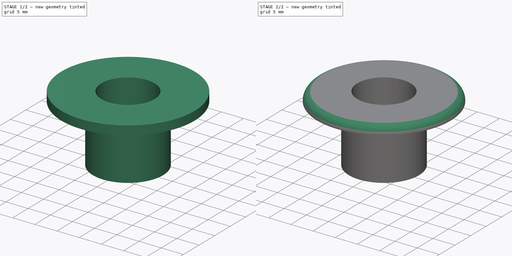
[diagram: build sequence overview — one tinted view per stage of 2, left to right]
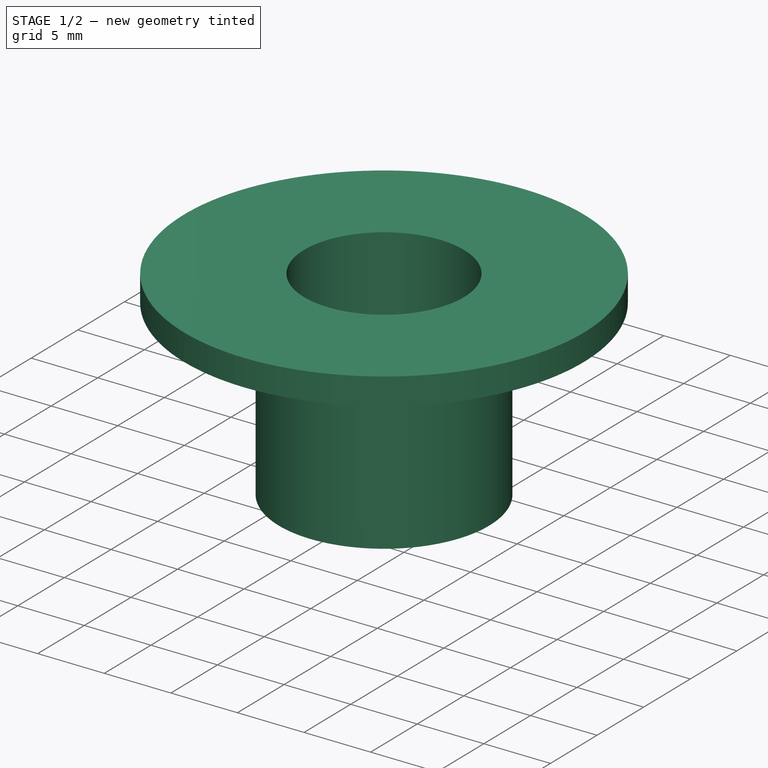
[diagram: stage 1 of 2 — iso view after this stage's code; geometry added in this stage tinted green]
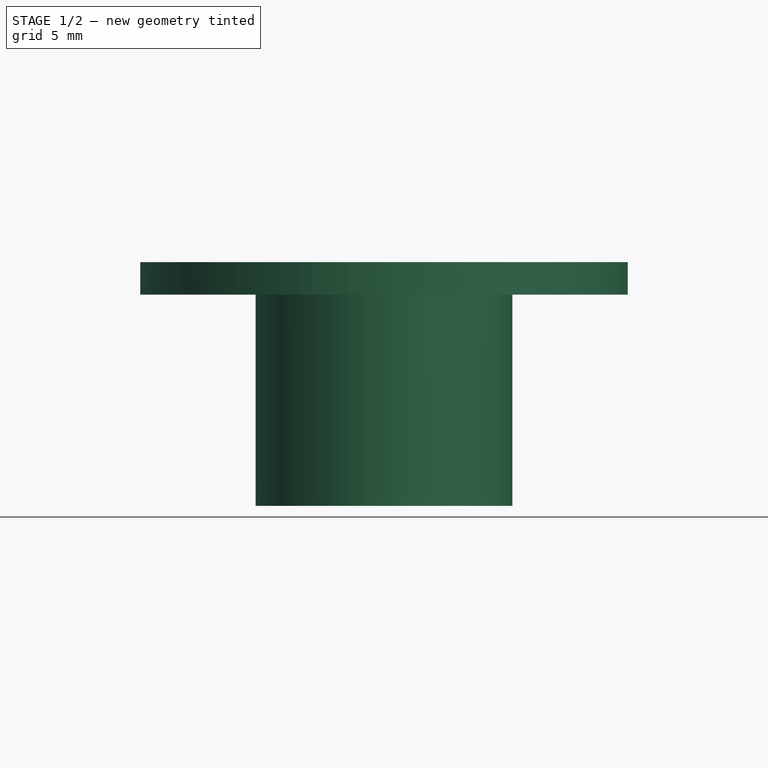
[diagram: stage 1 of 2 — front view after this stage's code; geometry added in this stage tinted green]
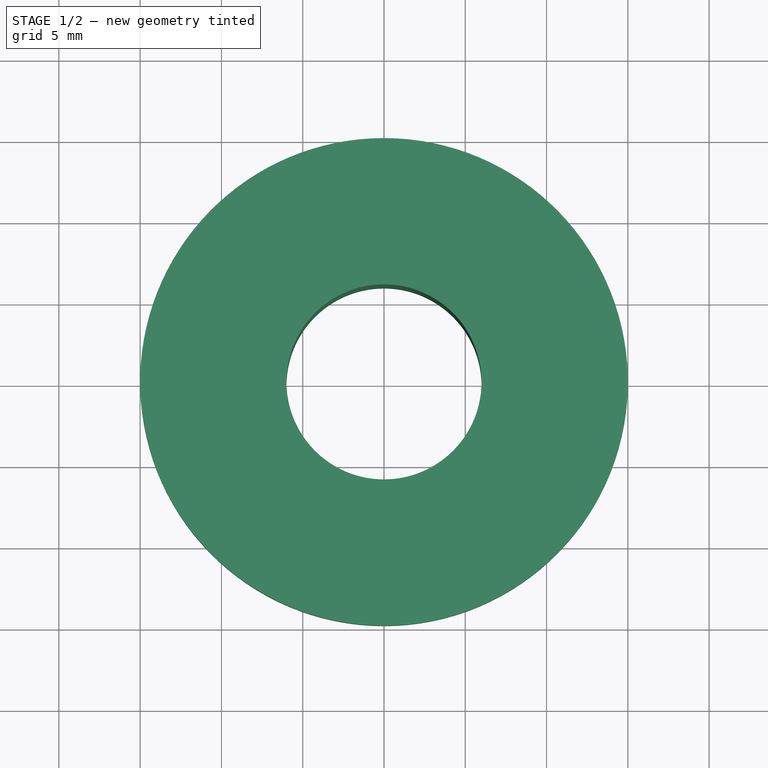
[diagram: stage 1 of 2 — top view after this stage's code; geometry added in this stage tinted green]
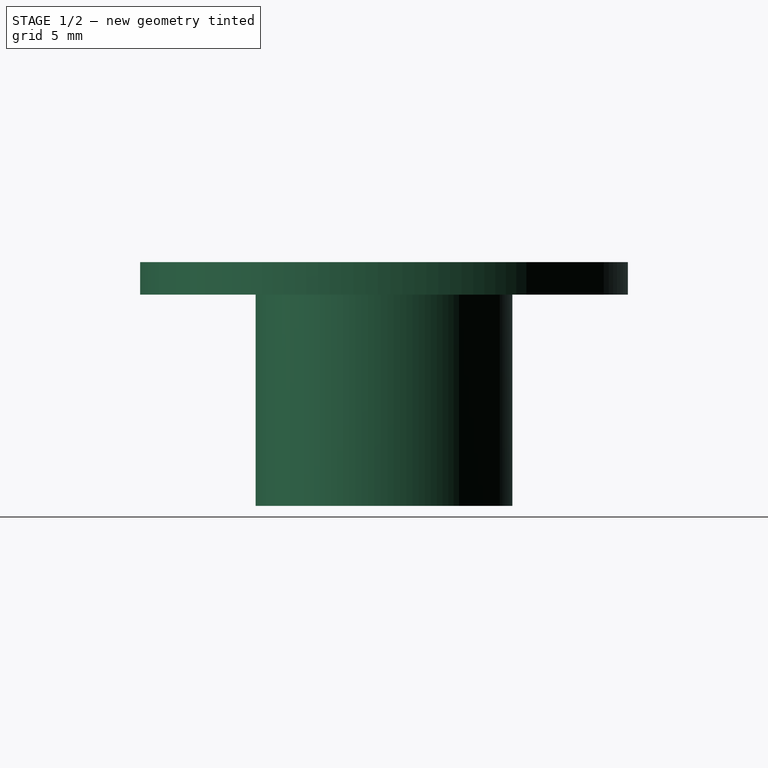
[diagram: stage 1 of 2 — right view after this stage's code; geometry added in this stage tinted green]
FCSTD DOCUMENT  (FreeCAD 0.21R33694 (Git))
Label: 12v_female_plug_insert
License: All rights reserved
LicenseURL: https://en.wikipedia.org/wiki/All_rights_reserved
objects: Sketcher::SketchObject×2, PartDesign::Revolution×1, PartDesign::Pad×1, PartDesign::Fillet×1, PartDesign::Body×1
note: 9 computed .brp shape members not serialized (recipe doc carries the construction recipe); baked Part::Feature solids carry a one-line shape summary decoded from their .brp

FEATURE [Sketcher::SketchObject] Sketch001
  FullyConstrained = true
  MapMode = 5
  Placement = pos=(0,0,0) rot=(0.57735,0.57735,0.57735;2.0944rad)
  Support = -> [YZ_Plane]
  sketch-geometry (6):
    g0: LineSegment StartX=0 StartY=0 StartZ=0 EndX=6 EndY=0 EndZ=0
    g1: LineSegment StartX=0 StartY=15 StartZ=0 EndX=6 EndY=15 EndZ=0
    g2: LineSegment StartX=6 StartY=15 StartZ=0 EndX=7.9 EndY=15 EndZ=0
    g3: LineSegment StartX=7.9 StartY=15 StartZ=0 EndX=7.9 EndY=0 EndZ=0
    g4: LineSegment StartX=7.9 StartY=0 StartZ=0 EndX=6 EndY=0 EndZ=0
    g5: LineSegment StartX=6 StartY=0 StartZ=0 EndX=6 EndY=15 EndZ=0
  constraints (18):
    c: Coincident(g0,g-1)
    c: PointOnObject(g0,g-1)
    c: PointOnObject(g1,g-2)
    c: Horizontal(g1)
    c: DistanceY(g0,g1) = 15
    c: DistanceX(g1,g0) = 0
    c: DistanceX(g1,g1) = 6
    c: Coincident(g2,g3)
    c: Coincident(g3,g4)
    c: Coincident(g4,g5)
    c: Coincident(g5,g2)
    c: Horizontal(g2)
    c: Horizontal(g4)
    c: Vertical(g3)
    c: Vertical(g5)
    c: Coincident(g2,g1)
    c: PointOnObject(g3,g-1)
    c: DistanceX(g0,g3) = 7.9
FEATURE [PartDesign::Revolution] Revolution
  Angle = 360
  Axis = (-2e-16,3e-16,1)
  Base = (0,0,0)
  Midplane = true
  Placement = pos=(0,0,0) rot=(1,1,1;2.0944rad)
  Profile = -> Sketch001
  ReferenceAxis = -> Sketch001 [V_Axis]
FEATURE [Sketcher::SketchObject] Sketch002
  ExternalGeometry = -> [Revolution]
  FullyConstrained = true
  MapMode = 5
  Placement = pos=(-8.3e-15,5.8e-15,15) rot=(0,0,-1;1.5708rad)
  Support = -> [Revolution]
  sketch-geometry (2):
    g0: Circle CenterX=0 CenterY=0 CenterZ=0 NormalX=0 NormalY=0 NormalZ=1 AngleXU=0 Radius=15
    g1: Circle CenterX=0 CenterY=0 CenterZ=0 NormalX=0 NormalY=0 NormalZ=1 AngleXU=0 Radius=6
  constraints (4):
    c: Coincident(g0,g-1)
    c: Coincident(g1,g0)
    c: Equal(g-3,g1)
    c: Diameter(g0) = 30
FEATURE [PartDesign::Pad] Pad
  BaseFeature = -> Revolution
  Direction = (-6e-16,4e-16,1)
  Length = 2
  Length2 = 10
  Placement = pos=(0,0,0) rot=(1,1,1;2.0944rad)
  Profile = -> Sketch002
  ReferenceAxis = -> Sketch002 [N_Axis]
  Reversed = true
  Type = 0
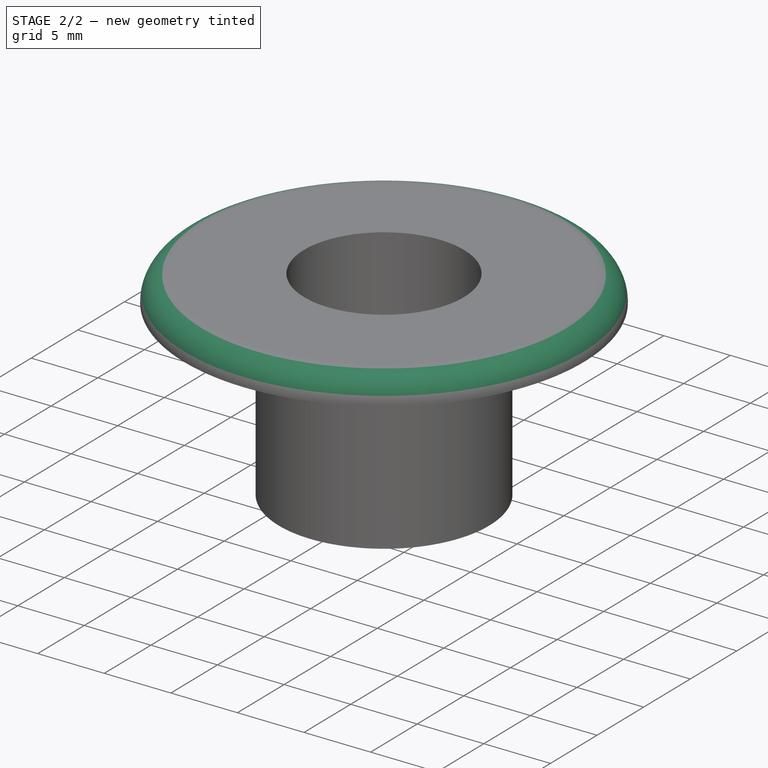
[diagram: stage 2 of 2 — iso view after this stage's code; geometry added in this stage tinted green]
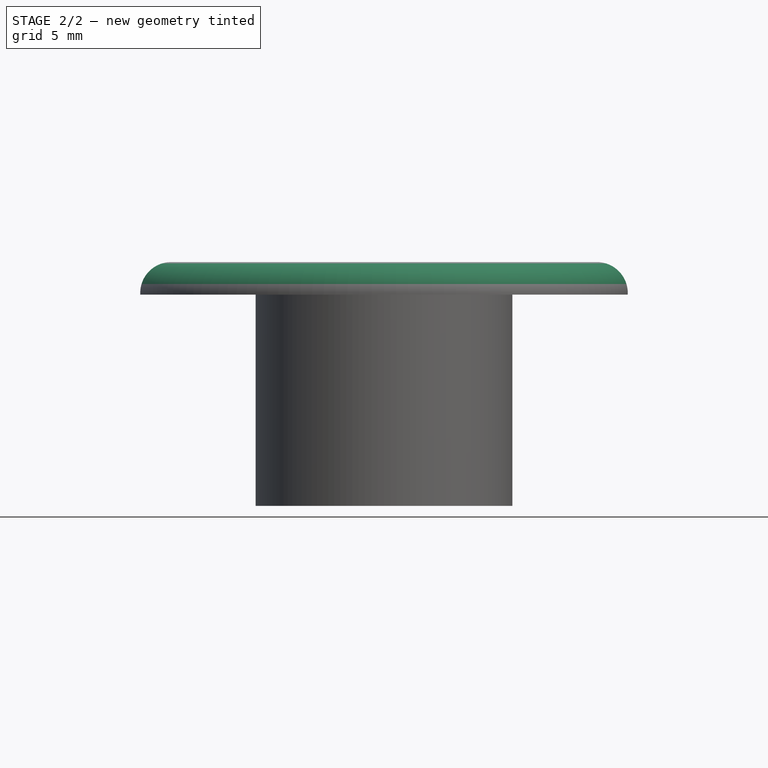
[diagram: stage 2 of 2 — front view after this stage's code; geometry added in this stage tinted green]
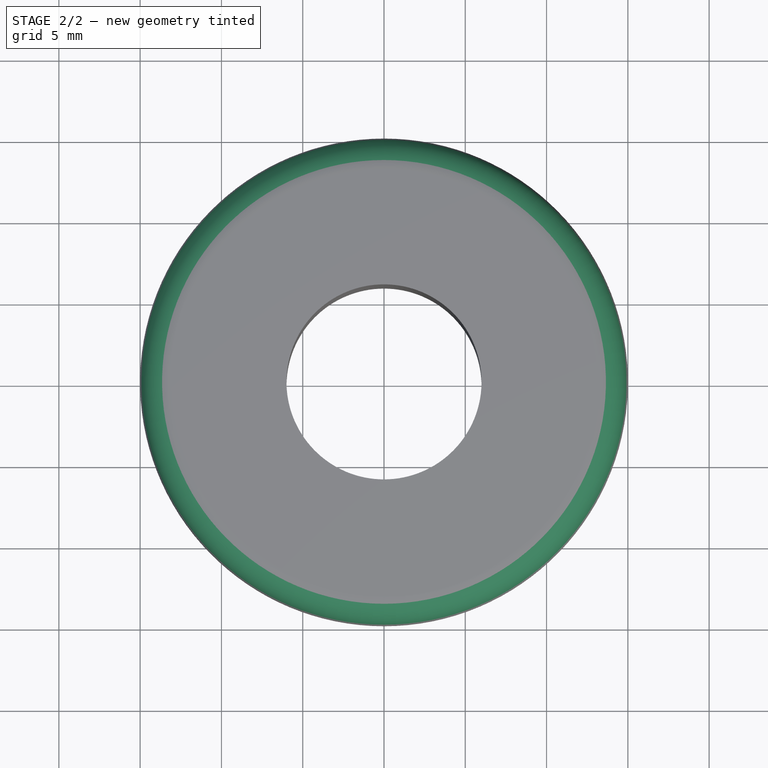
[diagram: stage 2 of 2 — top view after this stage's code; geometry added in this stage tinted green]
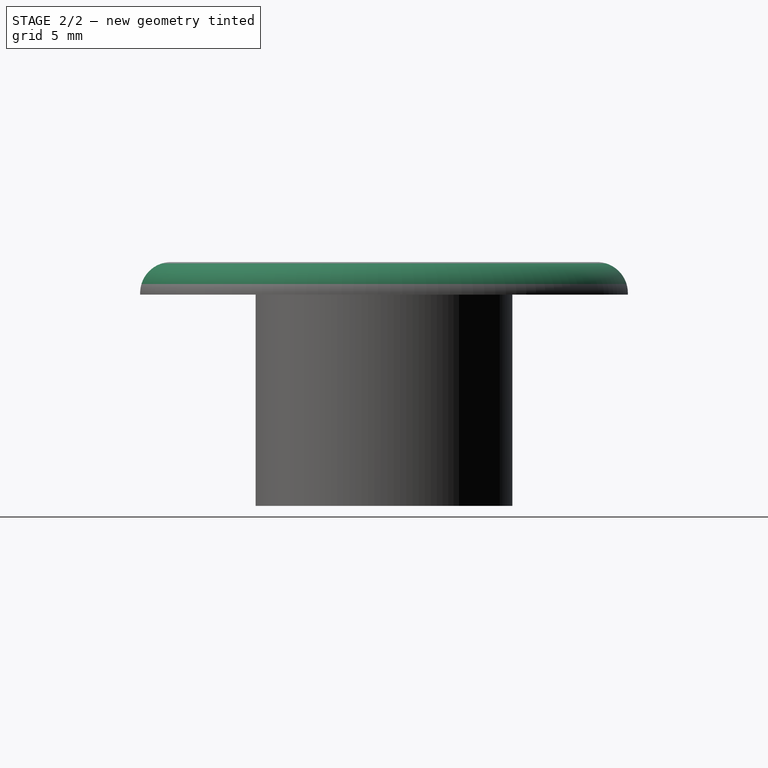
[diagram: stage 2 of 2 — right view after this stage's code; geometry added in this stage tinted green]
FEATURE [PartDesign::Fillet] Fillet
  Base = -> Pad [Edge5]
  BaseFeature = -> Pad
  Placement = pos=(0,0,0) rot=(1,1,1;2.0944rad)
  Radius = 1.9
  SupportTransform = false
  UseAllEdges = false
FEATURE [PartDesign::Body] Body
  Group = -> [Sketch001,Revolution,Sketch002,Pad,Fillet]
  Origin = -> Origin
  Tip = -> Fillet
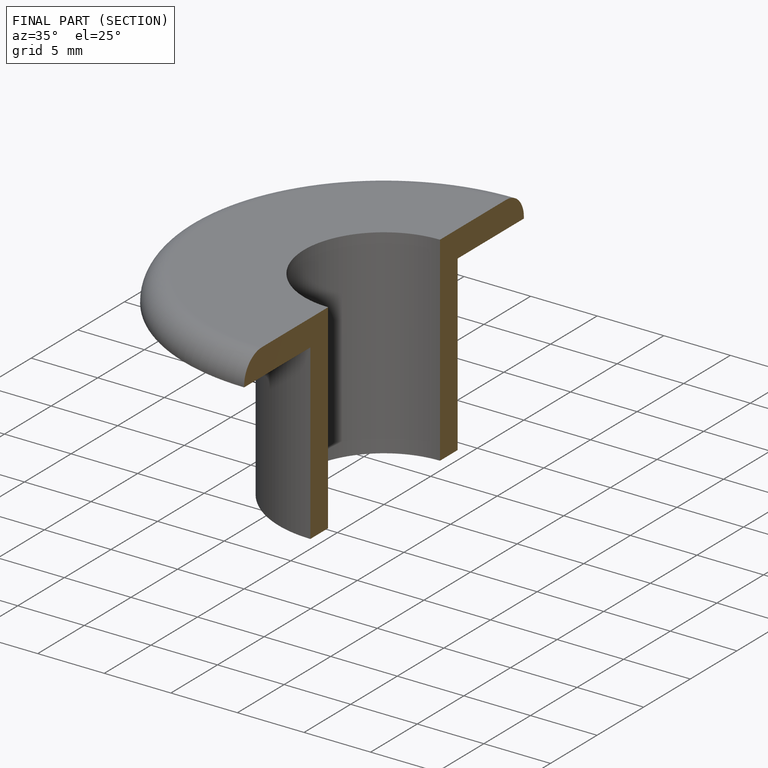
[diagram: finished part — half-section view (interior)]
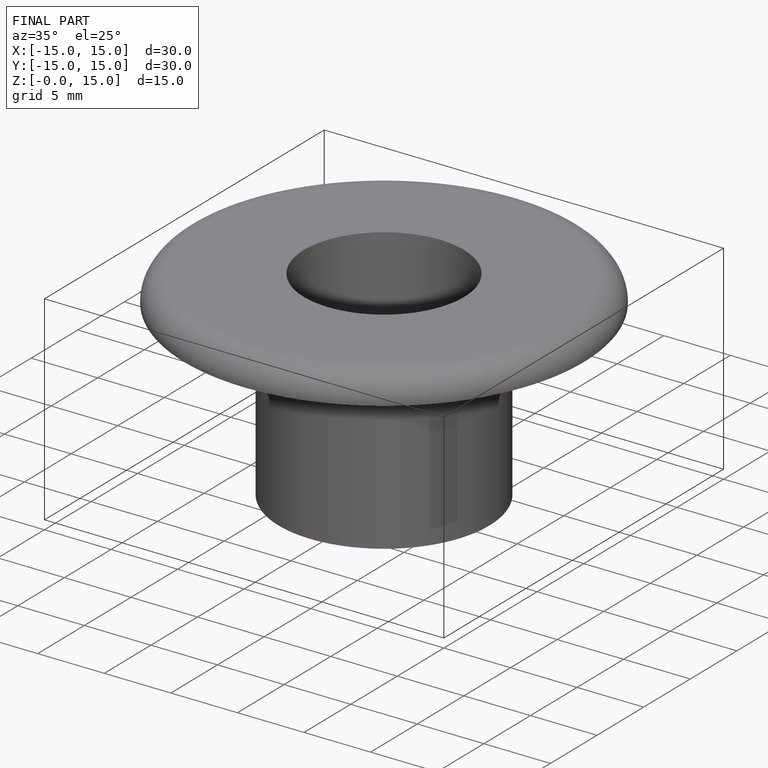
[diagram: finished part — iso view with bounding-box wireframe]
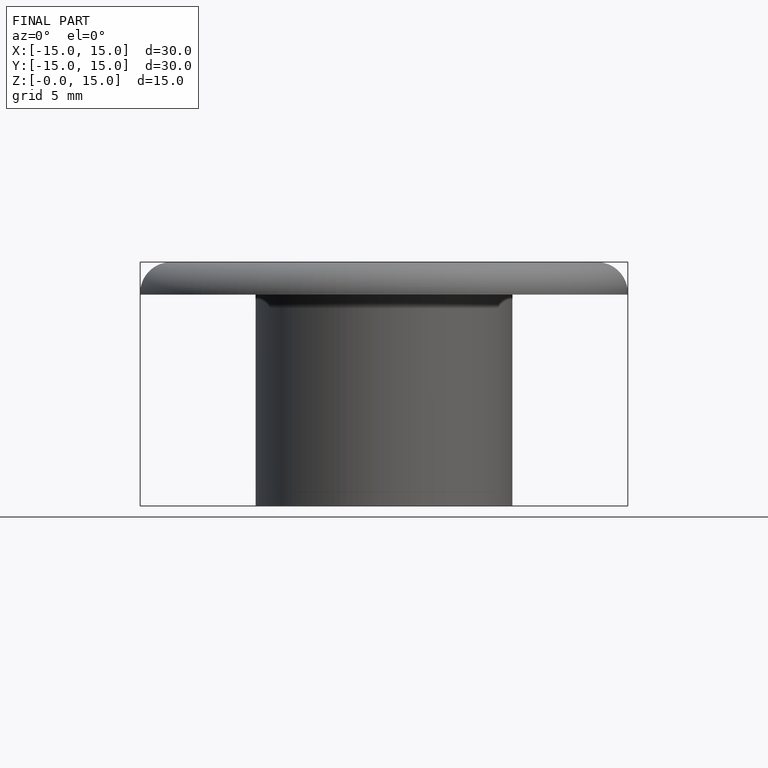
[diagram: finished part — front view with bounding-box wireframe]
